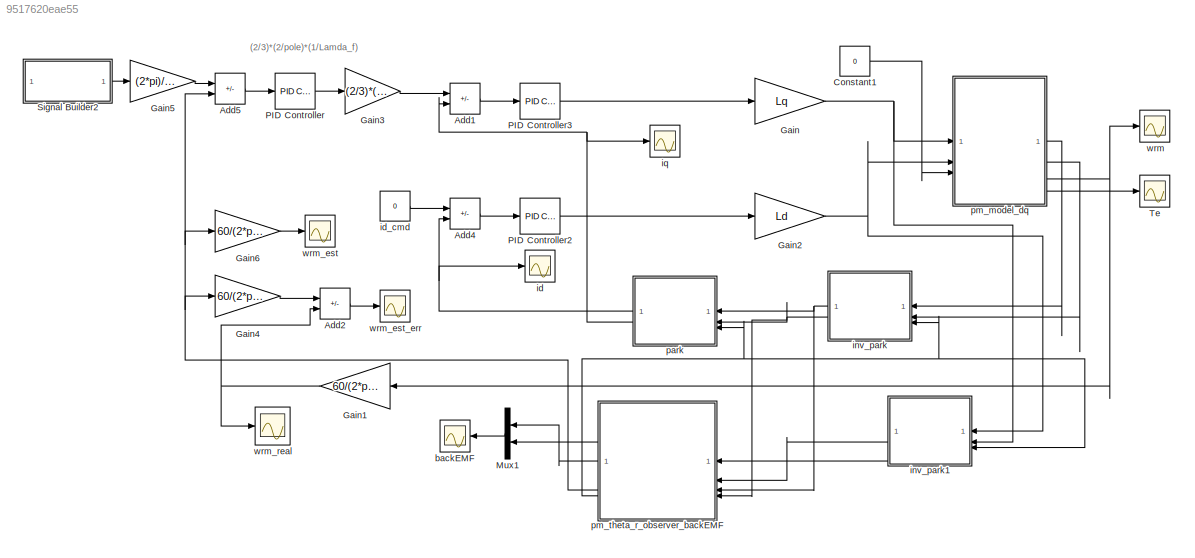
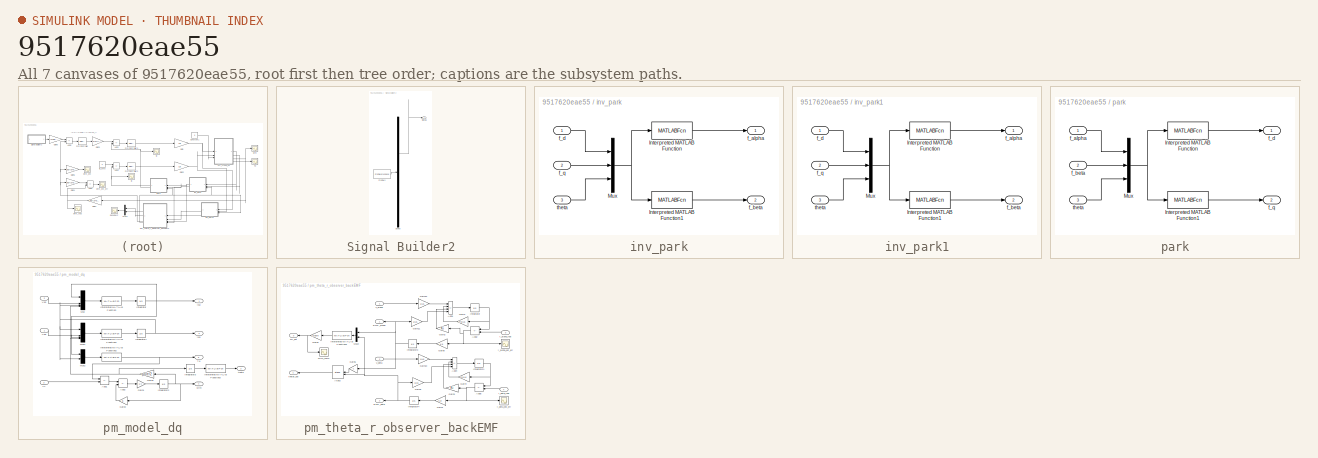
[diagram: thumbnail index - all 7 canvases of the model, root first then tree order]
MODEL slx_9517620eae55
KIND model
CONFIG AbsTol = auto
CONFIG EnableMultiTasking = off
CONFIG FixedStep = 0.00001
CONFIG MaxStep = auto
CONFIG MinStep = auto
CONFIG RelTol = auto
CONFIG SampleTimeConstraint = Unconstrained
CONFIG SolverName = VariableStepAuto
CONFIG StartTime = 0.0
CONFIG StopTime = 2
BLOCK [Sum] Add1
  IconShape = rectangular
  Inputs = +-
BLOCK [Sum] Add2
  IconShape = rectangular
  Inputs = +-
BLOCK [Sum] Add4
  IconShape = rectangular
  Inputs = +-
BLOCK [Sum] Add5
  IconShape = rectangular
  Inputs = +-
BLOCK [Constant] Constant1
  Value = 0
BLOCK [Gain] Gain
  Gain = Lq
BLOCK [Gain] Gain1
  Gain = 60/(2*pi)
BLOCK [Gain] Gain2
  Gain = Ld
BLOCK [Gain] Gain3
  Gain = (2/3)*(2/pole)*(1/Lamda_f)
BLOCK [Gain] Gain4
  Gain = 60/(2*pi)
  NameLocation = top
BLOCK [Gain] Gain5
  Gain = (2*pi)/60
  NameLocation = top
BLOCK [Gain] Gain6
  Gain = 60/(2*pi)
  NameLocation = top
BLOCK [Mux] Mux1
  DisplayOption = bar
  Inputs = 2
BLOCK [Reference] PID Controller  REF=slpidlib/PID Controller
  LibrarySourceBlock = simulink/Continuous/PID Controller
  SourceBlock = slpidlib/PID Controller
  SourceType = PID 1dof
BLOCK [Reference] PID Controller2  REF=slpidlib/PID Controller
  LibrarySourceBlock = simulink/Continuous/PID Controller
  SourceBlock = slpidlib/PID Controller
  SourceType = PID 1dof
BLOCK [Reference] PID Controller3  REF=slpidlib/PID Controller
  LibrarySourceBlock = simulink/Continuous/PID Controller
  SourceBlock = slpidlib/PID Controller
  SourceType = PID 1dof
BLOCK [SubSystem] Signal Builder2
  ClipboardFcn = sigbuilder_block('clipboard');
  CloseFcn = sigbuilder_block('close');
  ContinueFcn = sigbuilder_block('continue');
  CopyFcn = sigbuilder_block('copy');
  DeleteFcn = sigbuilder_block('delete');
  LoadFcn = sigbuilder_block('load');
  MaskHideContents = on
  ModelCloseFcn = sigbuilder_block('modelClose');
  NameChangeFcn = sigbuilder_block('namechange');
  OpenFcn = sigbuilder_block('open',[346 179 550 400 ]);
  PauseFcn = sigbuilder_block('pause');
  PreSaveFcn = sigbuilder_block('preSave');
  StartFcn = sigbuilder_block('start');
  StopFcn = sigbuilder_block('stop');
  Tag = STV Subsys
BLOCK [Demux] Signal Builder2/Demux
  DisplayOption = none
  Outputs = 1
  Tag = STV Demux
BLOCK [FromWorkspace] Signal Builder2/FromWs
  Tag = STV FromWs
  VariableName = tuvar
BLOCK [Outport] Signal Builder2/Signal 1
  Tag = STV Outport
BLOCK [Scope] Te
  Floating = off
  NumInputPorts = 1
  ScopeSpecificationString = Simulink.scopes.TimeScopeBlockCfg('CurrentConfiguration', extmgr.ConfigurationSet(extmgr.Configuration('Core','General UI',true,'FigureColor',[1 1 1]),extmgr.Configuration('Core','Source UI',true),extmgr.Configuration('Sources','WiredSimulink',true,'DataLoggingVariableName','ScopeData1'),extmgr.Configuration('Visuals','Time Domain',true,'SerializedDisplays',{struct('MinYLimReal','-0.00908','MaxYLi...<+1565ch>
BLOCK [Scope] backEMF
  Floating = off
  NumInputPorts = 1
  ScopeSpecificationString = Simulink.scopes.TimeScopeBlockCfg('CurrentConfiguration', extmgr.ConfigurationSet(extmgr.Configuration('Core','General UI',true,'FigureColor',[1 1 1]),extmgr.Configuration('Core','Source UI',true),extmgr.Configuration('Sources','WiredSimulink',true,'DataLoggingVariableName','ScopeData1'),extmgr.Configuration('Visuals','Time Domain',true,'SerializedDisplays',{struct('MinYLimReal','-28.982','MaxYLim...<+1618ch>
BLOCK [Scope] id
  Floating = off
  NumInputPorts = 1
  ScopeSpecificationString = Simulink.scopes.TimeScopeBlockCfg('CurrentConfiguration', extmgr.ConfigurationSet(extmgr.Configuration('Core','General UI',true,'FigureColor',[1 1 1]),extmgr.Configuration('Core','Source UI',true),extmgr.Configuration('Sources','WiredSimulink',true,'DataLoggingVariableName','ScopeData4'),extmgr.Configuration('Visuals','Time Domain',true,'SerializedDisplays',{struct('MinYLimReal','-1','MaxYLimReal'...<+1534ch>
BLOCK [Constant] id_cmd
  Value = 0
BLOCK [SubSystem] inv_park
BLOCK [MATLABFcn] inv_park/Interpreted MATLAB Function
  MATLABFcn = cos(u(3))*u(1)-sin(u(3))*u(2)
BLOCK [MATLABFcn] inv_park/Interpreted MATLAB Function1
  MATLABFcn = sin(u(3))*u(1)+cos(u(3))*u(2)
BLOCK [Mux] inv_park/Mux
  DisplayOption = bar
  Inputs = 3
BLOCK [Outport] inv_park/f_alpha
BLOCK [Outport] inv_park/f_beta
  Port = 2
BLOCK [Inport] inv_park/f_d
BLOCK [Inport] inv_park/f_q
  Port = 2
BLOCK [Inport] inv_park/theta
  Port = 3
BLOCK [SubSystem] inv_park1
BLOCK [MATLABFcn] inv_park1/Interpreted MATLAB Function
  MATLABFcn = cos(u(3))*u(1)-sin(u(3))*u(2)
BLOCK [MATLABFcn] inv_park1/Interpreted MATLAB Function1
  MATLABFcn = sin(u(3))*u(1)+cos(u(3))*u(2)
BLOCK [Mux] inv_park1/Mux
  DisplayOption = bar
  Inputs = 3
BLOCK [Outport] inv_park1/f_alpha
BLOCK [Outport] inv_park1/f_beta
  Port = 2
BLOCK [Inport] inv_park1/f_d
BLOCK [Inport] inv_park1/f_q
  Port = 2
BLOCK [Inport] inv_park1/theta
  Port = 3
BLOCK [Scope] iq
  Floating = off
  NumInputPorts = 1
  ScopeSpecificationString = Simulink.scopes.TimeScopeBlockCfg('CurrentConfiguration', extmgr.ConfigurationSet(extmgr.Configuration('Core','General UI',true,'FigureColor',[1 1 1]),extmgr.Configuration('Core','Source UI',true),extmgr.Configuration('Sources','WiredSimulink',true,'DataLoggingVariableName','ScopeData1'),extmgr.Configuration('Visuals','Time Domain',true,'SerializedDisplays',{struct('MinYLimReal','-0.0246','MaxYLim...<+1556ch>
BLOCK [SubSystem] park
BLOCK [MATLABFcn] park/Interpreted MATLAB Function
  MATLABFcn = cos(u(3))*u(1)+sin(u(3))*u(2)
BLOCK [MATLABFcn] park/Interpreted MATLAB Function1
  MATLABFcn = -sin(u(3))*u(1)+cos(u(3))*u(2)
BLOCK [Mux] park/Mux
  DisplayOption = bar
  Inputs = 3
BLOCK [Inport] park/f_alpha
BLOCK [Inport] park/f_beta
  Port = 2
BLOCK [Outport] park/f_d
BLOCK [Outport] park/f_q
  Port = 2
BLOCK [Inport] park/theta
  Port = 3
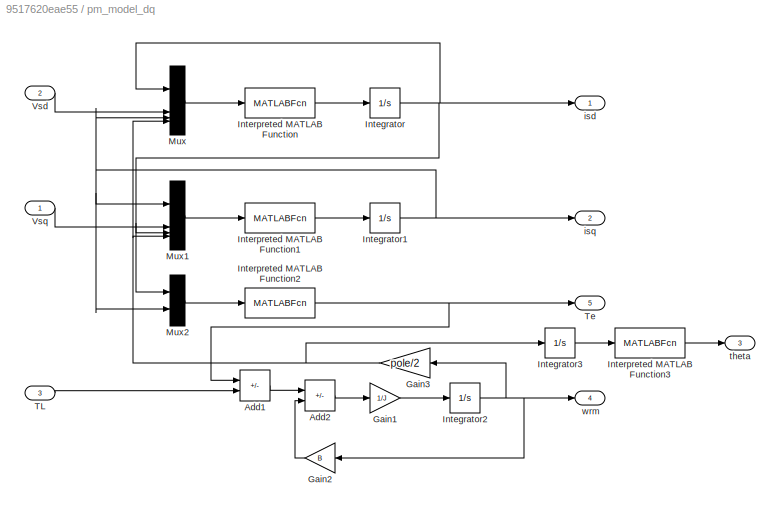
BLOCK [SubSystem] pm_model_dq
BLOCK [Sum] pm_model_dq/Add1
  IconShape = rectangular
  Inputs = +-
BLOCK [Sum] pm_model_dq/Add2
  IconShape = rectangular
  Inputs = +-
BLOCK [Gain] pm_model_dq/Gain1
  Gain = 1/J
BLOCK [Gain] pm_model_dq/Gain2
  Gain = B
  NameLocation = top
BLOCK [Gain] pm_model_dq/Gain3
  Gain = pole/2
BLOCK [Integrator] pm_model_dq/Integrator
BLOCK [Integrator] pm_model_dq/Integrator1
BLOCK [Integrator] pm_model_dq/Integrator2
BLOCK [Integrator] pm_model_dq/Integrator3
BLOCK [MATLABFcn] pm_model_dq/Interpreted MATLAB Function
  MATLABFcn = -(Rs/Ld)*u(1) + (Lq/Ld)*u(3)*u(4) + u(2)/Ld
BLOCK [MATLABFcn] pm_model_dq/Interpreted MATLAB Function1
  MATLABFcn = -(Rs/Lq)*u(1) - (Ld/Lq)*u(3)*u(4) - (Lamda_f/Lq)*u(4) + u(2)/Lq
BLOCK [MATLABFcn] pm_model_dq/Interpreted MATLAB Function2
  MATLABFcn = 3/2*(pole/2)*(Lamda_f*u(2) + (Ld-Lq)*u(1)*u(2))
BLOCK [MATLABFcn] pm_model_dq/Interpreted MATLAB Function3
  MATLABFcn = mod(u, 2*pi)
BLOCK [Mux] pm_model_dq/Mux
  DisplayOption = bar
BLOCK [Mux] pm_model_dq/Mux1
  DisplayOption = bar
BLOCK [Mux] pm_model_dq/Mux2
  DisplayOption = bar
  Inputs = 2
BLOCK [Inport] pm_model_dq/TL
  Port = 3
BLOCK [Outport] pm_model_dq/Te
  Port = 5
BLOCK [Inport] pm_model_dq/Vsd
  Port = 2
BLOCK [Inport] pm_model_dq/Vsq
BLOCK [Outport] pm_model_dq/isd
BLOCK [Outport] pm_model_dq/isq
  Port = 2
BLOCK [Outport] pm_model_dq/theta
  Port = 3
BLOCK [Outport] pm_model_dq/wrm
  Port = 4
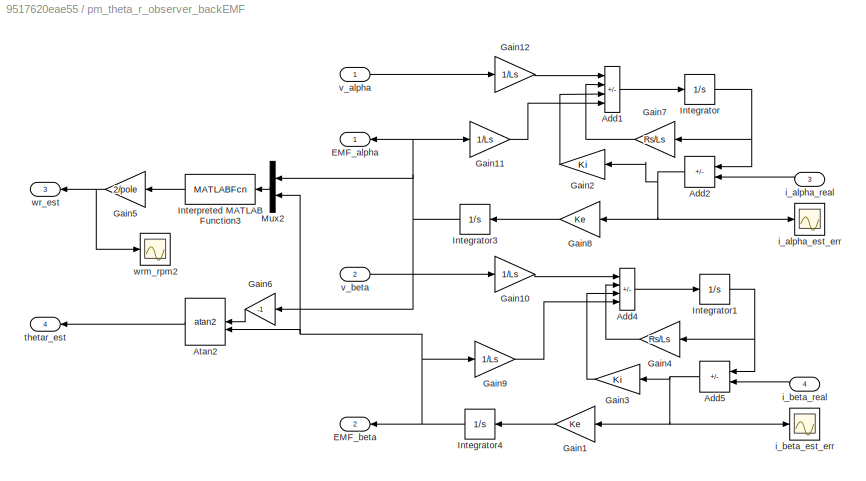
BLOCK [SubSystem] pm_theta_r_observer_backEMF
BLOCK [Sum] pm_theta_r_observer_backEMF/Add1
  IconShape = rectangular
  Inputs = +---
BLOCK [Sum] pm_theta_r_observer_backEMF/Add2
  IconShape = rectangular
  Inputs = +-
BLOCK [Sum] pm_theta_r_observer_backEMF/Add4
  IconShape = rectangular
  Inputs = +---
BLOCK [Sum] pm_theta_r_observer_backEMF/Add5
  IconShape = rectangular
  Inputs = +-
BLOCK [Trigonometry] pm_theta_r_observer_backEMF/Atan2
  Operator = atan2
BLOCK [Outport] pm_theta_r_observer_backEMF/EMF_alpha
BLOCK [Outport] pm_theta_r_observer_backEMF/EMF_beta
  Port = 2
BLOCK [Gain] pm_theta_r_observer_backEMF/Gain1
  Gain = Ke
BLOCK [Gain] pm_theta_r_observer_backEMF/Gain10
  Gain = 1/Ls
BLOCK [Gain] pm_theta_r_observer_backEMF/Gain11
  Gain = 1/Ls
BLOCK [Gain] pm_theta_r_observer_backEMF/Gain12
  Gain = 1/Ls
BLOCK [Gain] pm_theta_r_observer_backEMF/Gain2
  Gain = Ki
BLOCK [Gain] pm_theta_r_observer_backEMF/Gain3
  Gain = Ki
BLOCK [Gain] pm_theta_r_observer_backEMF/Gain4
  Gain = Rs/Ls
BLOCK [Gain] pm_theta_r_observer_backEMF/Gain5
  Gain = 2/pole
  NameLocation = top
BLOCK [Gain] pm_theta_r_observer_backEMF/Gain6
  Gain = -1
BLOCK [Gain] pm_theta_r_observer_backEMF/Gain7
  Gain = Rs/Ls
BLOCK [Gain] pm_theta_r_observer_backEMF/Gain8
  Gain = Ke
BLOCK [Gain] pm_theta_r_observer_backEMF/Gain9
  Gain = 1/Ls
BLOCK [Integrator] pm_theta_r_observer_backEMF/Integrator
BLOCK [Integrator] pm_theta_r_observer_backEMF/Integrator1
BLOCK [Integrator] pm_theta_r_observer_backEMF/Integrator3
BLOCK [Integrator] pm_theta_r_observer_backEMF/Integrator4
BLOCK [MATLABFcn] pm_theta_r_observer_backEMF/Interpreted MATLAB Function3
  MATLABFcn = sqrt(u(1)^2+u(2)^2)/Lamda_f
BLOCK [Mux] pm_theta_r_observer_backEMF/Mux2
  DisplayOption = bar
  Inputs = 2
BLOCK [Scope] pm_theta_r_observer_backEMF/i_alpha_est_err
  Floating = off
  NumInputPorts = 1
  ScopeSpecificationString = Simulink.scopes.TimeScopeBlockCfg('CurrentConfiguration', extmgr.ConfigurationSet(extmgr.Configuration('Core','General UI',true,'FigureColor',[1 1 1]),extmgr.Configuration('Core','Source UI',true),extmgr.Configuration('Sources','WiredSimulink',true,'DataLoggingVariableName','ScopeData4'),extmgr.Configuration('Visuals','Time Domain',true,'SerializedDisplays',{struct('MinYLimReal','-0.06265','MaxYLi...<+1559ch>
BLOCK [Inport] pm_theta_r_observer_backEMF/i_alpha_real
  Port = 3
BLOCK [Scope] pm_theta_r_observer_backEMF/i_beta_est_err
  Floating = off
  NumInputPorts = 1
  ScopeSpecificationString = Simulink.scopes.TimeScopeBlockCfg('CurrentConfiguration', extmgr.ConfigurationSet(extmgr.Configuration('Core','General UI',true,'FigureColor',[1 1 1]),extmgr.Configuration('Core','Source UI',true),extmgr.Configuration('Sources','WiredSimulink',true,'DataLoggingVariableName','ScopeData1'),extmgr.Configuration('Visuals','Time Domain',true,'SerializedDisplays',{struct('MinYLimReal','-0.06256','MaxYLi...<+1559ch>
BLOCK [Inport] pm_theta_r_observer_backEMF/i_beta_real
  Port = 4
BLOCK [Outport] pm_theta_r_observer_backEMF/thetar_est
  Port = 4
BLOCK [Inport] pm_theta_r_observer_backEMF/v_alpha
BLOCK [Inport] pm_theta_r_observer_backEMF/v_beta
  Port = 2
BLOCK [Outport] pm_theta_r_observer_backEMF/wr_est
  Port = 3
BLOCK [Scope] pm_theta_r_observer_backEMF/wrm_rpm2
  Floating = off
  NumInputPorts = 1
  ScopeSpecificationString = Simulink.scopes.TimeScopeBlockCfg('CurrentConfiguration', extmgr.ConfigurationSet(extmgr.Configuration('Core','General UI',true,'FigureColor',[1 1 1]),extmgr.Configuration('Core','Source UI',true),extmgr.Configuration('Sources','WiredSimulink',true,'DataLoggingVariableName','ScopeData1'),extmgr.Configuration('Visuals','Time Domain',true,'SerializedDisplays',{struct('MinYLimReal','-126.83181','MaxY...<+1578ch>
BLOCK [Scope] wrm
  Floating = off
  NumInputPorts = 1
  ScopeSpecificationString = Simulink.scopes.TimeScopeBlockCfg('CurrentConfiguration', extmgr.ConfigurationSet(extmgr.Configuration('Core','General UI',true,'FigureColor',[1 1 1]),extmgr.Configuration('Core','Source UI',true),extmgr.Configuration('Sources','WiredSimulink',true,'DataLoggingVariableName','ScopeData1'),extmgr.Configuration('Visuals','Time Domain',true,'SerializedDisplays',{struct('MinYLimReal','-6.55017','MaxYLi...<+1572ch>
BLOCK [Scope] wrm_est
  Floating = off
  NumInputPorts = 1
  ScopeSpecificationString = Simulink.scopes.TimeScopeBlockCfg('CurrentConfiguration', extmgr.ConfigurationSet(extmgr.Configuration('Core','General UI',true,'FigureColor',[1 1 1]),extmgr.Configuration('Core','Source UI',true),extmgr.Configuration('Sources','WiredSimulink',true,'DataLoggingVariableName','ScopeData5'),extmgr.Configuration('Visuals','Time Domain',true,'SerializedDisplays',{struct('MinYLimReal','-125.05863','MaxY...<+1578ch>
BLOCK [Scope] wrm_est_err
  Floating = off
  NumInputPorts = 1
  ScopeSpecificationString = Simulink.scopes.TimeScopeBlockCfg('CurrentConfiguration', extmgr.ConfigurationSet(extmgr.Configuration('Core','General UI',true,'FigureColor',[1 1 1]),extmgr.Configuration('Core','Source UI',true),extmgr.Configuration('Sources','WiredSimulink',true,'DataLoggingVariableName','ScopeData7'),extmgr.Configuration('Visuals','Time Domain',true,'SerializedDisplays',{struct('MinYLimReal','-1.43966','MaxYLi...<+1556ch>
BLOCK [Scope] wrm_real
  Floating = off
  NumInputPorts = 1
  ScopeSpecificationString = Simulink.scopes.TimeScopeBlockCfg('CurrentConfiguration', extmgr.ConfigurationSet(extmgr.Configuration('Core','General UI',true,'FigureColor',[1 1 1]),extmgr.Configuration('Core','Source UI',true),extmgr.Configuration('Sources','WiredSimulink',true,'DataLoggingVariableName','ScopeData6'),extmgr.Configuration('Visuals','Time Domain',true,'SerializedDisplays',{struct('MinYLimReal','-245.47989','MaxY...<+1593ch>
ANNOTATION (root): (2/3)*(2/pole)*(1/Lamda_f)
LINE Add1:1 -> PID Controller3:1
LINE Add2:1 -> wrm_est_err:1
LINE Add4:1 -> PID Controller2:1
LINE Add5:1 -> PID Controller:1
LINE Constant1:1 -> pm_model_dq:3
NET Gain1:1 -> Add2:2, wrm_real:1
NET Gain2:1 -> inv_park1:1, pm_model_dq:2
LINE Gain3:1 -> Add1:1
LINE Gain4:1 -> Add2:1
LINE Gain5:1 -> Add5:1
LINE Gain6:1 -> wrm_est:1
NET Gain:1 -> inv_park1:2, pm_model_dq:1
LINE Mux1:1 -> backEMF:1
LINE PID Controller2:1 -> Gain2:1
LINE PID Controller3:1 -> Gain:1
LINE PID Controller:1 -> Gain3:1
LINE Signal Builder2:1 -> Gain5:1
LINE id_cmd:1 -> Add4:1
LINE inv_park/Interpreted MATLAB Function1:1 -> inv_park/f_beta:1
LINE inv_park/Interpreted MATLAB Function:1 -> inv_park/f_alpha:1
NET inv_park/Mux:1 -> inv_park/Interpreted MATLAB Function1:1, inv_park/Interpreted MATLAB Function:1
LINE inv_park/f_d:1 -> inv_park/Mux:1
LINE inv_park/f_q:1 -> inv_park/Mux:2
LINE inv_park/theta:1 -> inv_park/Mux:3
LINE inv_park1/Interpreted MATLAB Function1:1 -> inv_park1/f_beta:1
LINE inv_park1/Interpreted MATLAB Function:1 -> inv_park1/f_alpha:1
NET inv_park1/Mux:1 -> inv_park1/Interpreted MATLAB Function1:1, inv_park1/Interpreted MATLAB Function:1
LINE inv_park1/f_d:1 -> inv_park1/Mux:1
LINE inv_park1/f_q:1 -> inv_park1/Mux:2
LINE inv_park1/theta:1 -> inv_park1/Mux:3
LINE inv_park1:1 -> pm_theta_r_observer_backEMF:1
LINE inv_park1:2 -> pm_theta_r_observer_backEMF:2
NET inv_park:1 -> park:1, pm_theta_r_observer_backEMF:3
NET inv_park:2 -> park:2, pm_theta_r_observer_backEMF:4
LINE park/Interpreted MATLAB Function1:1 -> park/f_q:1
LINE park/Interpreted MATLAB Function:1 -> park/f_d:1
NET park/Mux:1 -> park/Interpreted MATLAB Function1:1, park/Interpreted MATLAB Function:1
LINE park/f_alpha:1 -> park/Mux:1
LINE park/f_beta:1 -> park/Mux:2
LINE park/theta:1 -> park/Mux:3
NET park:1 -> Add4:2, id:1
NET park:2 -> Add1:2, iq:1
LINE pm_model_dq/Add1:1 -> pm_model_dq/Add2:1
LINE pm_model_dq/Add2:1 -> pm_model_dq/Gain1:1
LINE pm_model_dq/Gain1:1 -> pm_model_dq/Integrator2:1
LINE pm_model_dq/Gain2:1 -> pm_model_dq/Add2:2
NET pm_model_dq/Gain3:1 -> pm_model_dq/Integrator3:1, pm_model_dq/Mux1:4, pm_model_dq/Mux:4
NET pm_model_dq/Integrator1:1 -> pm_model_dq/Mux1:1, pm_model_dq/Mux2:2, pm_model_dq/Mux:3, pm_model_dq/isq:1
NET pm_model_dq/Integrator2:1 -> pm_model_dq/Gain2:1, pm_model_dq/Gain3:1, pm_model_dq/wrm:1
LINE pm_model_dq/Integrator3:1 -> pm_model_dq/Interpreted MATLAB Function3:1
NET pm_model_dq/Integrator:1 -> pm_model_dq/Mux1:3, pm_model_dq/Mux2:1, pm_model_dq/Mux:1, pm_model_dq/isd:1
LINE pm_model_dq/Interpreted MATLAB Function1:1 -> pm_model_dq/Integrator1:1
NET pm_model_dq/Interpreted MATLAB Function2:1 -> pm_model_dq/Add1:1, pm_model_dq/Te:1
LINE pm_model_dq/Interpreted MATLAB Function3:1 -> pm_model_dq/theta:1
LINE pm_model_dq/Interpreted MATLAB Function:1 -> pm_model_dq/Integrator:1
LINE pm_model_dq/Mux1:1 -> pm_model_dq/Interpreted MATLAB Function1:1
LINE pm_model_dq/Mux2:1 -> pm_model_dq/Interpreted MATLAB Function2:1
LINE pm_model_dq/Mux:1 -> pm_model_dq/Interpreted MATLAB Function:1
LINE pm_model_dq/TL:1 -> pm_model_dq/Add1:2
LINE pm_model_dq/Vsd:1 -> pm_model_dq/Mux:2
LINE pm_model_dq/Vsq:1 -> pm_model_dq/Mux1:2
LINE pm_model_dq:1 -> inv_park:1
LINE pm_model_dq:2 -> inv_park:2
NET pm_model_dq:4 -> Gain1:1, wrm:1
LINE pm_model_dq:5 -> Te:1
LINE pm_theta_r_observer_backEMF/Add1:1 -> pm_theta_r_observer_backEMF/Integrator:1
NET pm_theta_r_observer_backEMF/Add2:1 -> pm_theta_r_observer_backEMF/Gain2:1, pm_theta_r_observer_backEMF/Gain8:1, pm_theta_r_observer_backEMF/i_alpha_est_err:1
LINE pm_theta_r_observer_backEMF/Add4:1 -> pm_theta_r_observer_backEMF/Integrator1:1
NET pm_theta_r_observer_backEMF/Add5:1 -> pm_theta_r_observer_backEMF/Gain1:1, pm_theta_r_observer_backEMF/Gain3:1, pm_theta_r_observer_backEMF/i_beta_est_err:1
LINE pm_theta_r_observer_backEMF/Atan2:1 -> pm_theta_r_observer_backEMF/thetar_est:1
LINE pm_theta_r_observer_backEMF/Gain10:1 -> pm_theta_r_observer_backEMF/Add4:1
LINE pm_theta_r_observer_backEMF/Gain11:1 -> pm_theta_r_observer_backEMF/Add1:4
LINE pm_theta_r_observer_backEMF/Gain12:1 -> pm_theta_r_observer_backEMF/Add1:1
LINE pm_theta_r_observer_backEMF/Gain1:1 -> pm_theta_r_observer_backEMF/Integrator4:1
LINE pm_theta_r_observer_backEMF/Gain2:1 -> pm_theta_r_observer_backEMF/Add1:3
LINE pm_theta_r_observer_backEMF/Gain3:1 -> pm_theta_r_observer_backEMF/Add4:3
LINE pm_theta_r_observer_backEMF/Gain4:1 -> pm_theta_r_observer_backEMF/Add4:2
NET pm_theta_r_observer_backEMF/Gain5:1 -> pm_theta_r_observer_backEMF/wr_est:1, pm_theta_r_observer_backEMF/wrm_rpm2:1
LINE pm_theta_r_observer_backEMF/Gain6:1 -> pm_theta_r_observer_backEMF/Atan2:1
LINE pm_theta_r_observer_backEMF/Gain7:1 -> pm_theta_r_observer_backEMF/Add1:2
LINE pm_theta_r_observer_backEMF/Gain8:1 -> pm_theta_r_observer_backEMF/Integrator3:1
LINE pm_theta_r_observer_backEMF/Gain9:1 -> pm_theta_r_observer_backEMF/Add4:4
NET pm_theta_r_observer_backEMF/Integrator1:1 -> pm_theta_r_observer_backEMF/Add5:1, pm_theta_r_observer_backEMF/Gain4:1
NET pm_theta_r_observer_backEMF/Integrator3:1 -> pm_theta_r_observer_backEMF/EMF_alpha:1, pm_theta_r_observer_backEMF/Gain11:1, pm_theta_r_observer_backEMF/Gain6:1, pm_theta_r_observer_backEMF/Mux2:1
NET pm_theta_r_observer_backEMF/Integrator4:1 -> pm_theta_r_observer_backEMF/Atan2:2, pm_theta_r_observer_backEMF/EMF_beta:1, pm_theta_r_observer_backEMF/Gain9:1, pm_theta_r_observer_backEMF/Mux2:2
NET pm_theta_r_observer_backEMF/Integrator:1 -> pm_theta_r_observer_backEMF/Add2:1, pm_theta_r_observer_backEMF/Gain7:1
LINE pm_theta_r_observer_backEMF/Interpreted MATLAB Function3:1 -> pm_theta_r_observer_backEMF/Gain5:1
LINE pm_theta_r_observer_backEMF/Mux2:1 -> pm_theta_r_observer_backEMF/Interpreted MATLAB Function3:1
LINE pm_theta_r_observer_backEMF/i_alpha_real:1 -> pm_theta_r_observer_backEMF/Add2:2
LINE pm_theta_r_observer_backEMF/i_beta_real:1 -> pm_theta_r_observer_backEMF/Add5:2
LINE pm_theta_r_observer_backEMF/v_alpha:1 -> pm_theta_r_observer_backEMF/Gain12:1
LINE pm_theta_r_observer_backEMF/v_beta:1 -> pm_theta_r_observer_backEMF/Gain10:1
LINE pm_theta_r_observer_backEMF:1 -> Mux1:1
LINE pm_theta_r_observer_backEMF:2 -> Mux1:2
NET pm_theta_r_observer_backEMF:3 -> Add5:2, Gain4:1, Gain6:1
NET pm_theta_r_observer_backEMF:4 -> inv_park1:3, inv_park:3, park:3
note: NET lines group one-source signal fan-out (src -> all destinations, sorted); 1:1 wires keep LINE
